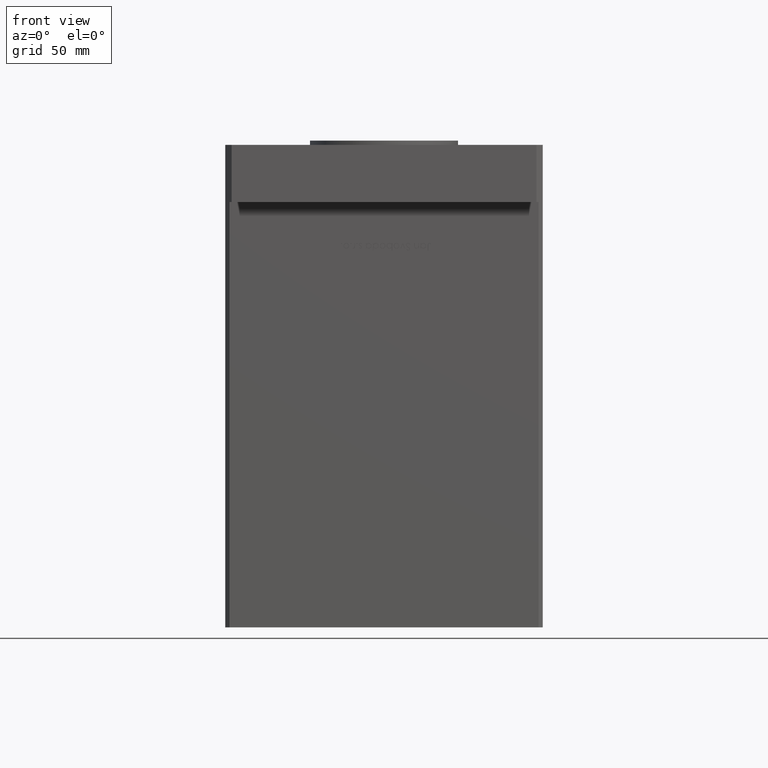
[diagram: clean part render]
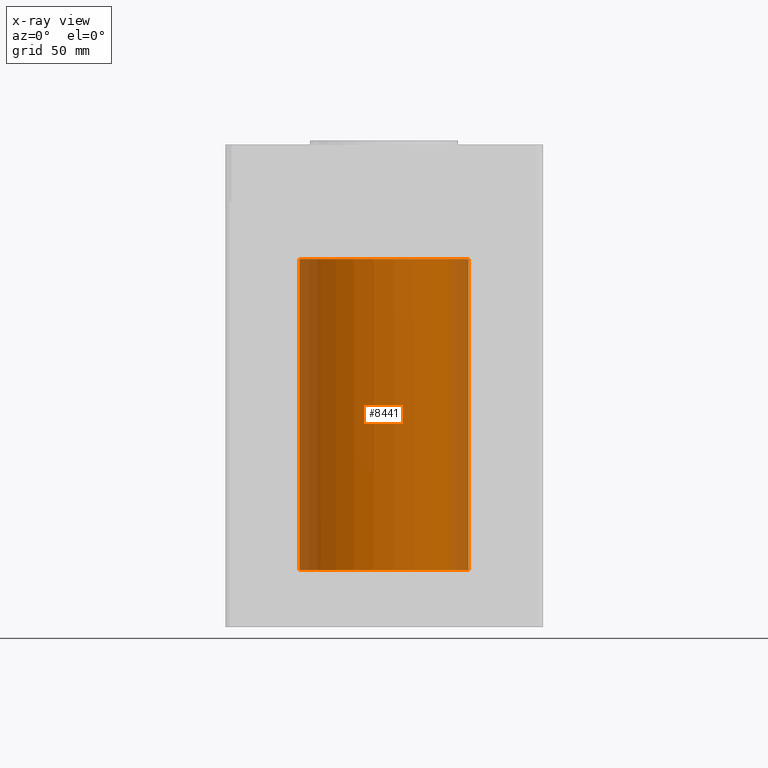
[diagram: x-ray — body ghosted, one internal face saturated and labeled with its STEP entity id]
A machine part, front view, then the same camera in x-ray: the body is ghosted and one INTERNAL B-rep face — a face not visible from any outside direction — is saturated and labeled: STEP entity #8441.
In plain terms, the highlighted cylindrical surface (partial cylindrical patch) has radius 40 mm, axis along (-0, -0, -1).
Its self-contained STEP definition (entity closure, byte-faithful):
#45 = VERTEX_POINT ( 'NONE', #47688 ) ;
#598 = DIRECTION ( 'NONE',  ( -0.000000000000000000, 0.000000000000000000, 1.000000000000000000 ) ) ;
#3897 = VECTOR ( 'NONE', #7851, 1000.000000000000000 ) ;
#4359 = CIRCLE ( 'NONE', #26833, 40.00000000000000000 ) ;
#5453 = VERTEX_POINT ( 'NONE', #13049 ) ;
#6452 = DIRECTION ( 'NONE',  ( -0.000000000000000000, 0.000000000000000000, 1.000000000000000000 ) ) ;
#7851 = DIRECTION ( 'NONE',  ( -0.000000000000000000, -0.000000000000000000, -1.000000000000000000 ) ) ;
#8441 = ADVANCED_FACE ( 'NONE', ( #28373 ), #24310, .F. ) ;
#10591 = AXIS2_PLACEMENT_3D ( 'NONE', #40836, #32986, #36777 ) ;
#12465 = EDGE_CURVE ( 'NONE', #45, #41117, #18295, .T. ) ;
#13049 = CARTESIAN_POINT ( 'NONE',  ( 40.00000000000000000, 4.898587196589413026E-15, 0.000000000000000000 ) ) ;
#13418 = CARTESIAN_POINT ( 'NONE',  ( -40.00000000000000000, 0.000000000000000000, 0.000000000000000000 ) ) ;
#14066 = VECTOR ( 'NONE', #18552, 1000.000000000000000 ) ;
#15112 = EDGE_CURVE ( 'NONE', #45, #30069, #28814, .T. ) ;
#18295 = LINE ( 'NONE', #47022, #14066 ) ;
#18552 = DIRECTION ( 'NONE',  ( -0.000000000000000000, -0.000000000000000000, -1.000000000000000000 ) ) ;
#19259 = LINE ( 'NONE', #23858, #3897 ) ;
#21099 = EDGE_CURVE ( 'NONE', #30069, #5453, #19259, .T. ) ;
#21994 = ORIENTED_EDGE ( 'NONE', *, *, #15112, .T. ) ;
#23331 = EDGE_LOOP ( 'NONE', ( #21994, #26110, #47459, #40915 ) ) ;
#23858 = CARTESIAN_POINT ( 'NONE',  ( 40.00000000000000000, 4.898587196589413026E-15, 147.0000000000000000 ) ) ;
#24310 = CYLINDRICAL_SURFACE ( 'NONE', #10591, 40.00000000000000000 ) ;
#26110 = ORIENTED_EDGE ( 'NONE', *, *, #21099, .T. ) ;
#26833 = AXIS2_PLACEMENT_3D ( 'NONE', #43574, #6452, #39508 ) ;
#28373 = FACE_OUTER_BOUND ( 'NONE', #23331, .T. ) ;
#28814 = CIRCLE ( 'NONE', #30570, 40.00000000000000000 ) ;
#30069 = VERTEX_POINT ( 'NONE', #42779 ) ;
#30570 = AXIS2_PLACEMENT_3D ( 'NONE', #53448, #598, #45593 ) ;
#32986 = DIRECTION ( 'NONE',  ( -0.000000000000000000, -0.000000000000000000, -1.000000000000000000 ) ) ;
#36777 = DIRECTION ( 'NONE',  ( -1.000000000000000000, 0.000000000000000000, 0.000000000000000000 ) ) ;
#39508 = DIRECTION ( 'NONE',  ( 1.000000000000000000, 0.000000000000000000, 0.000000000000000000 ) ) ;
#40836 = CARTESIAN_POINT ( 'NONE',  ( 0.000000000000000000, 0.000000000000000000, 147.0000000000000000 ) ) ;
#40915 = ORIENTED_EDGE ( 'NONE', *, *, #12465, .F. ) ;
#41117 = VERTEX_POINT ( 'NONE', #13418 ) ;
#42779 = CARTESIAN_POINT ( 'NONE',  ( 40.00000000000000000, 4.898587196589413026E-15, 147.0000000000000000 ) ) ;
#43574 = CARTESIAN_POINT ( 'NONE',  ( 0.000000000000000000, 0.000000000000000000, 0.000000000000000000 ) ) ;
#45593 = DIRECTION ( 'NONE',  ( 1.000000000000000000, 0.000000000000000000, 0.000000000000000000 ) ) ;
#47022 = CARTESIAN_POINT ( 'NONE',  ( -40.00000000000000000, 0.000000000000000000, 147.0000000000000000 ) ) ;
#47459 = ORIENTED_EDGE ( 'NONE', *, *, #48199, .F. ) ;
#47688 = CARTESIAN_POINT ( 'NONE',  ( -40.00000000000000000, 0.000000000000000000, 147.0000000000000000 ) ) ;
#48199 = EDGE_CURVE ( 'NONE', #41117, #5453, #4359, .T. ) ;
#53448 = CARTESIAN_POINT ( 'NONE',  ( 0.000000000000000000, 0.000000000000000000, 147.0000000000000000 ) ) ;